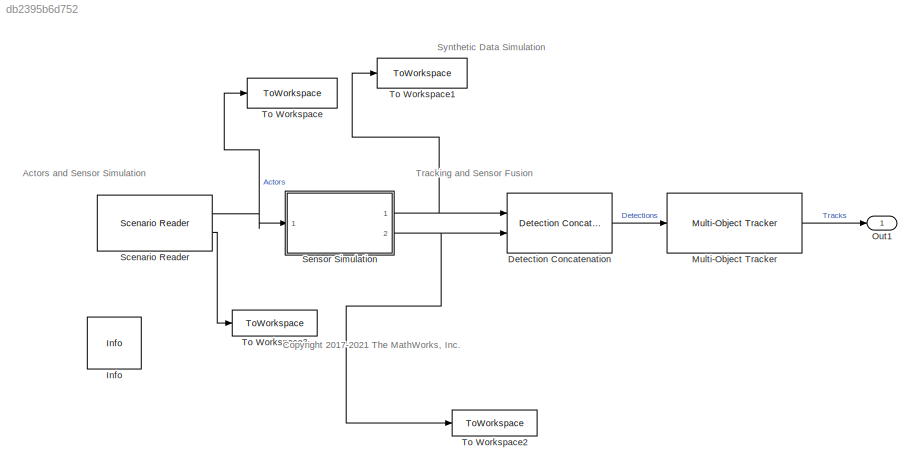
MODEL slx_db2395b6d752
KIND model
CONFIG AbsTol = auto
CONFIG EnableMultiTasking = off
CONFIG FixedStep = 0.1
CONFIG MaxStep = auto
CONFIG MinStep = auto
CONFIG RelTol = 1e-3
CONFIG SampleTimeConstraint = Unconstrained
CONFIG SolverName = FixedStepDiscrete
CONFIG StartTime = 0.0
CONFIG StopTime = 14.34
BLOCK [Reference] Detection Concatenation  REF=trackingutilitieslib/Detection Concatenation
  Commented = on
  Ports = [2, 1]
  SourceBlock = trackingutilitieslib/Detection Concatenation
  SourceProductBaseCode = TF,AE,DR,RA,UV,VE
  SourceType = matlabshared.tracking.internal.DetectionConcatenation
BLOCK [Reference] Info  REF=drivingmisc/Info
  Ports = []
  SourceBlock = drivingmisc/Info
  SourceProductBaseCode = DR
  SourceType = Info
BLOCK [Reference] Multi-Object Tracker  REF=drivinglib/Multi-Object Tracker
  Commented = on
  Ports = [1, 1]
  SourceBlock = drivinglib/Multi-Object Tracker
  SourceProductBaseCode = DR
  SourceType = multiObjectTracker
BLOCK [Outport] Out1
  VectorParamsAs1DForOutWhenUnconnected = off
BLOCK [Reference] Scenario Reader  REF=drivingscenarioandsensors/Scenario Reader
  Ports = [0, 2]
  SourceBlock = drivingscenarioandsensors/Scenario Reader
  SourceProductBaseCode = DR
  SourceType = driving.scenario.internal.ScenarioReader
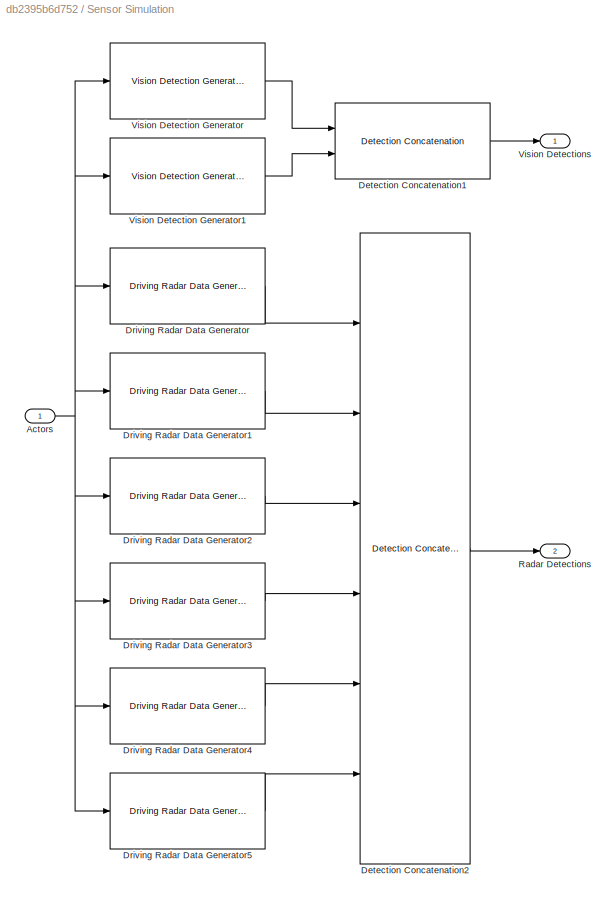
BLOCK [SubSystem] Sensor Simulation
  Ports = [1, 2]
  RequestExecContextInheritance = off
BLOCK [Inport] Sensor Simulation/Actors
BLOCK [Reference] Sensor Simulation/Detection Concatenation1  REF=trackingutilitieslib/Detection Concatenation
  Ports = [2, 1]
  SourceBlock = trackingutilitieslib/Detection Concatenation
  SourceProductBaseCode = TF,AE,DR,RA,UV,VE
  SourceType = matlabshared.tracking.internal.DetectionConcatenation
BLOCK [Reference] Sensor Simulation/Detection Concatenation2  REF=trackingutilitieslib/Detection Concatenation
  Ports = [6, 1]
  SourceBlock = trackingutilitieslib/Detection Concatenation
  SourceProductBaseCode = TF,AE,DR,RA,UV,VE
  SourceType = matlabshared.tracking.internal.DetectionConcatenation
BLOCK [Reference] Sensor Simulation/Driving Radar Data Generator  REF=drivingscenarioandsensors/Driving Radar Data Generator
  Ports = [1, 1]
  SourceBlock = drivingscenarioandsensors/Driving Radar Data Generator
  SourceProductBaseCode = DR
  SourceType = drivingRadarDataGenerator
BLOCK [Reference] Sensor Simulation/Driving Radar Data Generator1  REF=drivingscenarioandsensors/Driving Radar Data Generator
  Ports = [1, 1]
  SourceBlock = drivingscenarioandsensors/Driving Radar Data Generator
  SourceProductBaseCode = DR
  SourceType = drivingRadarDataGenerator
BLOCK [Reference] Sensor Simulation/Driving Radar Data Generator2  REF=drivingscenarioandsensors/Driving Radar Data Generator
  Ports = [1, 1]
  SourceBlock = drivingscenarioandsensors/Driving Radar Data Generator
  SourceProductBaseCode = DR
  SourceType = drivingRadarDataGenerator
BLOCK [Reference] Sensor Simulation/Driving Radar Data Generator3  REF=drivingscenarioandsensors/Driving Radar Data Generator
  Ports = [1, 1]
  SourceBlock = drivingscenarioandsensors/Driving Radar Data Generator
  SourceProductBaseCode = DR
  SourceType = drivingRadarDataGenerator
BLOCK [Reference] Sensor Simulation/Driving Radar Data Generator4  REF=drivingscenarioandsensors/Driving Radar Data Generator
  Ports = [1, 1]
  SourceBlock = drivingscenarioandsensors/Driving Radar Data Generator
  SourceProductBaseCode = DR
  SourceType = drivingRadarDataGenerator
BLOCK [Reference] Sensor Simulation/Driving Radar Data Generator5  REF=drivingscenarioandsensors/Driving Radar Data Generator
  Ports = [1, 1]
  SourceBlock = drivingscenarioandsensors/Driving Radar Data Generator
  SourceProductBaseCode = DR
  SourceType = drivingRadarDataGenerator
BLOCK [Outport] Sensor Simulation/Radar Detections
  Port = 2
  VectorParamsAs1DForOutWhenUnconnected = off
BLOCK [Reference] Sensor Simulation/Vision Detection Generator  REF=drivingscenarioandsensors/Vision Detection Generator
  Ports = [1, 1]
  SourceBlock = drivingscenarioandsensors/Vision Detection Generator
  SourceProductBaseCode = DR
  SourceType = visionDetectionGenerator
BLOCK [Reference] Sensor Simulation/Vision Detection Generator1  REF=drivingscenarioandsensors/Vision Detection Generator
  Ports = [1, 1]
  SourceBlock = drivingscenarioandsensors/Vision Detection Generator
  SourceProductBaseCode = DR
  SourceType = visionDetectionGenerator
BLOCK [Outport] Sensor Simulation/Vision Detections
  VectorParamsAs1DForOutWhenUnconnected = off
BLOCK [ToWorkspace] To Workspace
  FixptAsFi = on
  MaxDataPoints = inf
  Ports = [1]
  SampleTime = -1
  SaveFormat = Timeseries
  VariableName = reader_output
BLOCK [ToWorkspace] To Workspace1
  FixptAsFi = on
  MaxDataPoints = inf
  Ports = [1]
  SampleTime = -1
  SaveFormat = Timeseries
  VariableName = vision_output
BLOCK [ToWorkspace] To Workspace2
  FixptAsFi = on
  MaxDataPoints = inf
  Ports = [1]
  SampleTime = -1
  SaveFormat = Timeseries
  VariableName = radar_output
BLOCK [ToWorkspace] To Workspace3
  FixptAsFi = on
  MaxDataPoints = inf
  Ports = [1]
  SampleTime = -1
  SaveFormat = Timeseries
  VariableName = vehicle_pose
ANNOTATION (root): Actors and Sensor Simulation
ANNOTATION (root): <copyright redacted>
ANNOTATION (root): Synthetic Data Simulation
ANNOTATION (root): Tracking and Sensor Fusion
LINE Detection Concatenation:1 -> Multi-Object Tracker:1
LINE Multi-Object Tracker:1 -> Out1:1
NET Scenario Reader:1 -> Sensor Simulation:1, To Workspace:1
LINE Scenario Reader:2 -> To Workspace3:1
NET Sensor Simulation/Actors:1 -> Sensor Simulation/Driving Radar Data Generator1:1, Sensor Simulation/Driving Radar Data Generator2:1, Sensor Simulation/Driving Radar Data Generator3:1, Sensor Simulation/Driving Radar Data Generator4:1, Sensor Simulation/Driving Radar Data Generator5:1, Sensor Simulation/Driving Radar Data Generator:1, Sensor Simulation/Vision Detection Generator1:1, Sensor Simulation/Vision Detection Generator:1
LINE Sensor Simulation/Detection Concatenation1:1 -> Sensor Simulation/Vision Detections:1
LINE Sensor Simulation/Detection Concatenation2:1 -> Sensor Simulation/Radar Detections:1
LINE Sensor Simulation/Driving Radar Data Generator1:1 -> Sensor Simulation/Detection Concatenation2:2
LINE Sensor Simulation/Driving Radar Data Generator2:1 -> Sensor Simulation/Detection Concatenation2:3
LINE Sensor Simulation/Driving Radar Data Generator3:1 -> Sensor Simulation/Detection Concatenation2:4
LINE Sensor Simulation/Driving Radar Data Generator4:1 -> Sensor Simulation/Detection Concatenation2:5
LINE Sensor Simulation/Driving Radar Data Generator5:1 -> Sensor Simulation/Detection Concatenation2:6
LINE Sensor Simulation/Driving Radar Data Generator:1 -> Sensor Simulation/Detection Concatenation2:1
LINE Sensor Simulation/Vision Detection Generator1:1 -> Sensor Simulation/Detection Concatenation1:2
LINE Sensor Simulation/Vision Detection Generator:1 -> Sensor Simulation/Detection Concatenation1:1
NET Sensor Simulation:1 -> Detection Concatenation:1, To Workspace1:1
NET Sensor Simulation:2 -> Detection Concatenation:2, To Workspace2:1
note: NET lines group one-source signal fan-out (src -> all destinations, sorted); 1:1 wires keep LINE
